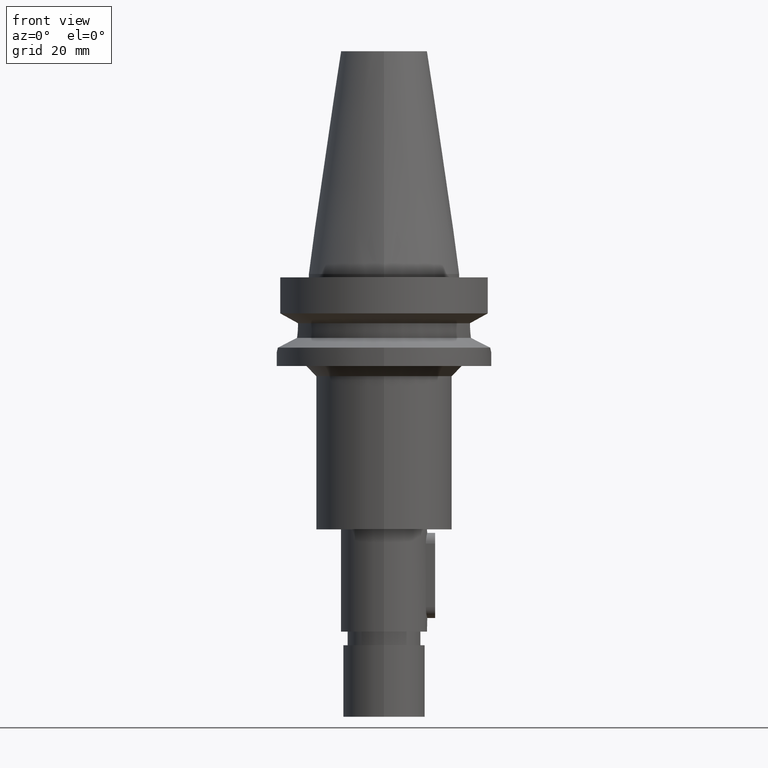
[diagram: clean part render]
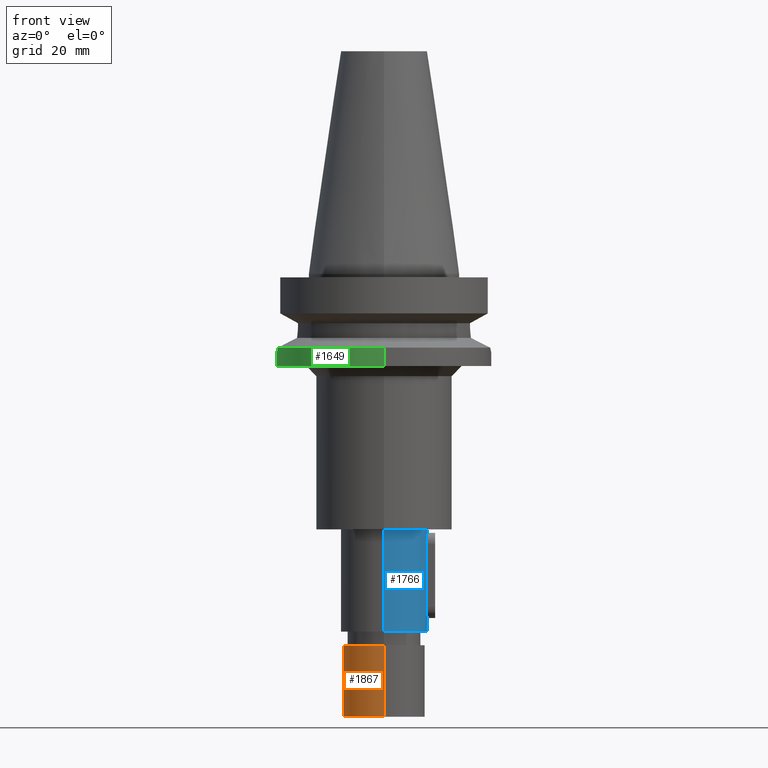
[diagram: same view with three faces highlighted in distinct colors, each labeled with its STEP entity id]
A machine part, front view with three faces highlighted in distinct colors.
Their STEP definitions:

[orange] entity #1867 — the highlighted cylindrical surface (partial cylindrical patch) has radius 12 mm, axis along (0, 0, -1).
#808=CARTESIAN_POINT('',(0.E0,2.145213798066E-14,-1.09E2));
#809=DIRECTION('',(0.E0,0.E0,-1.E0));
#810=DIRECTION('',(0.E0,-1.E0,0.E0));
#811=AXIS2_PLACEMENT_3D('',#808,#809,#810);
#832=DIRECTION('',(0.E0,0.E0,-1.E0));
#833=VECTOR('',#832,2.1E1);
#834=CARTESIAN_POINT('',(0.E0,1.2E1,-1.09E2));
#835=LINE('',#834,#833);
#839=DIRECTION('',(0.E0,0.E0,-1.E0));
#840=VECTOR('',#839,2.1E1);
#841=CARTESIAN_POINT('',(0.E0,-1.2E1,-1.09E2));
#842=LINE('',#841,#840);
#846=CARTESIAN_POINT('',(0.E0,2.145213798066E-14,-1.3E2));
#847=DIRECTION('',(0.E0,0.E0,1.E0));
#848=DIRECTION('',(0.E0,1.E0,0.E0));
#849=AXIS2_PLACEMENT_3D('',#846,#847,#848);
#1210=CARTESIAN_POINT('',(0.E0,1.2E1,-1.09E2));
#1211=CARTESIAN_POINT('',(0.E0,-1.2E1,-1.09E2));
#1212=VERTEX_POINT('',#1210);
#1213=VERTEX_POINT('',#1211);
#1214=CARTESIAN_POINT('',(0.E0,1.2E1,-1.3E2));
#1215=VERTEX_POINT('',#1214);
#1216=CARTESIAN_POINT('',(0.E0,-1.2E1,-1.3E2));
#1217=VERTEX_POINT('',#1216);
#1855=CARTESIAN_POINT('',(0.E0,2.145213798066E-14,7.517E1));
#1856=DIRECTION('',(0.E0,0.E0,-1.E0));
#1857=DIRECTION('',(0.E0,-1.E0,0.E0));
#1858=AXIS2_PLACEMENT_3D('',#1855,#1856,#1857);
#1859=CYLINDRICAL_SURFACE('',#1858,1.2E1);
#1860=ORIENTED_EDGE('',*,*,#1845,.F.);
#1861=ORIENTED_EDGE('',*,*,#1831,.F.);
#1862=ORIENTED_EDGE('',*,*,#1849,.T.);
#1864=ORIENTED_EDGE('',*,*,#1863,.F.);
#1865=EDGE_LOOP('',(#1860,#1861,#1862,#1864));
#1866=FACE_OUTER_BOUND('',#1865,.F.);
#812=CIRCLE('',#811,1.2E1);
#850=CIRCLE('',#849,1.2E1);
#1831=EDGE_CURVE('',#1213,#1212,#812,.T.);
#1845=EDGE_CURVE('',#1212,#1215,#835,.T.);
#1849=EDGE_CURVE('',#1213,#1217,#842,.T.);
#1863=EDGE_CURVE('',#1215,#1217,#850,.T.);
#1867=ADVANCED_FACE('',(#1866),#1859,.T.);

[blue] entity #1766 — the highlighted cylindrical surface (partial cylindrical patch) has radius 12.7 mm, axis along (0, 0, -1).
#710=CARTESIAN_POINT('',(0.E0,2.145213798066E-14,-7.5E1));
#711=DIRECTION('',(0.E0,0.E0,-1.E0));
#712=DIRECTION('',(0.E0,1.E0,0.E0));
#713=AXIS2_PLACEMENT_3D('',#710,#711,#712);
#726=DIRECTION('',(0.E0,0.E0,-1.E0));
#727=VECTOR('',#726,3.E1);
#728=CARTESIAN_POINT('',(0.E0,1.27E1,-7.5E1));
#729=LINE('',#728,#727);
#733=DIRECTION('',(0.E0,0.E0,-1.E0));
#734=VECTOR('',#733,1.865E1);
#735=CARTESIAN_POINT('',(1.229672212421E1,-3.175E0,-7.9175E1));
#736=LINE('',#735,#734);
#740=DIRECTION('',(0.E0,0.E0,1.E0));
#741=VECTOR('',#740,1.865E1);
#742=CARTESIAN_POINT('',(1.229672212421E1,3.175E0,-9.7825E1));
#743=LINE('',#742,#741);
#747=DIRECTION('',(0.E0,0.E0,-1.E0));
#748=VECTOR('',#747,3.E1);
#749=CARTESIAN_POINT('',(0.E0,-1.27E1,-7.5E1));
#750=LINE('',#749,#748);
#762=CARTESIAN_POINT('',(0.E0,2.145213798066E-14,-1.05E2));
#763=DIRECTION('',(0.E0,0.E0,1.E0));
#764=DIRECTION('',(0.E0,-1.E0,0.E0));
#765=AXIS2_PLACEMENT_3D('',#762,#763,#764);
#862=CARTESIAN_POINT('',(1.229672212421E1,-3.175E0,-7.9175E1));
#863=CARTESIAN_POINT('',(1.229672212421E1,-3.175E0,-7.890515124492E1));
#864=CARTESIAN_POINT('',(1.231473009773E1,-3.106632829053E0,-7.836100792455E1));
#865=CARTESIAN_POINT('',(1.239308024707E1,-2.785955131542E0,-7.757647034402E1));
#866=CARTESIAN_POINT('',(1.249852605400E1,-2.279093671454E0,-7.691333904992E1));
#867=CARTESIAN_POINT('',(1.260379102906E1,-1.617772602321E0,-7.639969170035E1));
#868=CARTESIAN_POINT('',(1.268185016032E1,-8.286768963870E-1,
-7.607132430609E1));
#869=CARTESIAN_POINT('',(1.270000027312E1,-2.754343927966E-1,
-7.599999871655E1));
#870=CARTESIAN_POINT('',(1.270000027312E1,-6.828208700673E-14,
-7.599999871655E1));
#875=CARTESIAN_POINT('',(1.270000027312E1,-6.828208700673E-14,
-7.599999871655E1));
#876=CARTESIAN_POINT('',(1.270000027312E1,2.703804618501E-1,-7.599999871655E1));
#877=CARTESIAN_POINT('',(1.268253072474E1,8.152836430110E-1,-7.606867194339E1));
#878=CARTESIAN_POINT('',(1.260609088645E1,1.599517927276E0,-7.638964233108E1));
#879=CARTESIAN_POINT('',(1.250163095211E1,2.262432360134E0,-7.689665976028E1));
#880=CARTESIAN_POINT('',(1.239540153042E1,2.776021585071E0,-7.755836981460E1));
#881=CARTESIAN_POINT('',(1.231541671831E1,3.104050914061E0,-7.834787912935E1));
#882=CARTESIAN_POINT('',(1.229672212421E1,3.175E0,-7.890021389503E1));
#883=CARTESIAN_POINT('',(1.229672212421E1,3.175E0,-7.9175E1));
#902=CARTESIAN_POINT('',(1.229672212421E1,3.175E0,-9.7825E1));
#903=CARTESIAN_POINT('',(1.229672212421E1,3.175E0,-9.809484872895E1));
#904=CARTESIAN_POINT('',(1.231473009754E1,3.106632828510E0,-9.863899208359E1));
#905=CARTESIAN_POINT('',(1.239308025576E1,2.785955101206E0,-9.942352978910E1));
#906=CARTESIAN_POINT('',(1.249852617954E1,2.279093074225E0,-1.000866616647E2));
#907=CARTESIAN_POINT('',(1.260379112852E1,1.617771636687E0,-1.006003087180E2));
#908=CARTESIAN_POINT('',(1.268185007234E1,8.286778734280E-1,-1.009286753317E2));
#909=CARTESIAN_POINT('',(1.270000027312E1,2.754348693555E-1,-1.010000012835E2));
#910=CARTESIAN_POINT('',(1.270000027312E1,3.445227692690E-14,
-1.010000012835E2));
#915=CARTESIAN_POINT('',(1.270000027312E1,3.445227692690E-14,
-1.010000012835E2));
#916=CARTESIAN_POINT('',(1.270000027312E1,-2.703799286932E-1,
-1.010000012835E2));
#917=CARTESIAN_POINT('',(1.268253081867E1,-8.152825347796E-1,
-1.009313284416E2));
#918=CARTESIAN_POINT('',(1.260609080512E1,-1.599518774472E0,-1.006103573322E2));
#919=CARTESIAN_POINT('',(1.250163082601E1,-2.262432977249E0,-1.001033395403E2));
#920=CARTESIAN_POINT('',(1.239540149814E1,-2.776021720748E0,-9.944162989167E1));
#921=CARTESIAN_POINT('',(1.231541670758E1,-3.104050955518E0,-9.865212067801E1));
#922=CARTESIAN_POINT('',(1.229672212421E1,-3.175E0,-9.809978605067E1));
#923=CARTESIAN_POINT('',(1.229672212421E1,-3.175E0,-9.7825E1));
#1187=CARTESIAN_POINT('',(0.E0,1.27E1,-7.5E1));
#1188=CARTESIAN_POINT('',(0.E0,-1.27E1,-7.5E1));
#1189=VERTEX_POINT('',#1187);
#1190=VERTEX_POINT('',#1188);
#1191=CARTESIAN_POINT('',(0.E0,1.27E1,-1.05E2));
#1192=VERTEX_POINT('',#1191);
#1193=CARTESIAN_POINT('',(0.E0,-1.27E1,-1.05E2));
#1194=VERTEX_POINT('',#1193);
#1195=VERTEX_POINT('',#875);
#1196=VERTEX_POINT('',#883);
#1197=VERTEX_POINT('',#862);
#1198=CARTESIAN_POINT('',(1.229672212421E1,-3.175E0,-9.7825E1));
#1199=VERTEX_POINT('',#1198);
#1200=VERTEX_POINT('',#915);
#1201=VERTEX_POINT('',#902);
#1738=CARTESIAN_POINT('',(0.E0,2.145213798066E-14,7.517E1));
#1739=DIRECTION('',(0.E0,0.E0,-1.E0));
#1740=DIRECTION('',(0.E0,-1.E0,0.E0));
#1741=AXIS2_PLACEMENT_3D('',#1738,#1739,#1740);
#1742=CYLINDRICAL_SURFACE('',#1741,1.27E1);
#1744=ORIENTED_EDGE('',*,*,#1743,.T.);
#1746=ORIENTED_EDGE('',*,*,#1745,.F.);
#1748=ORIENTED_EDGE('',*,*,#1747,.F.);
#1749=ORIENTED_EDGE('',*,*,#1731,.F.);
#1750=EDGE_LOOP('',(#1744,#1746,#1748,#1749));
#1751=FACE_OUTER_BOUND('',#1750,.F.);
#1753=ORIENTED_EDGE('',*,*,#1752,.F.);
#1755=ORIENTED_EDGE('',*,*,#1754,.F.);
#1757=ORIENTED_EDGE('',*,*,#1756,.T.);
#1759=ORIENTED_EDGE('',*,*,#1758,.F.);
#1761=ORIENTED_EDGE('',*,*,#1760,.F.);
#1763=ORIENTED_EDGE('',*,*,#1762,.T.);
#1764=EDGE_LOOP('',(#1753,#1755,#1757,#1759,#1761,#1763));
#1765=FACE_BOUND('',#1764,.F.);
#714=CIRCLE('',#713,1.27E1);
#766=CIRCLE('',#765,1.27E1);
#871=B_SPLINE_CURVE_WITH_KNOTS('',3,(#862,#863,#864,#865,#866,#867,#868,#869,
#870),.UNSPECIFIED.,.F.,.F.,(4,1,1,1,1,1,4),(0.E0,1.666666666667E-1,
3.333333333333E-1,5.E-1,6.666666666667E-1,8.333333333333E-1,1.E0),
.UNSPECIFIED.);
#884=B_SPLINE_CURVE_WITH_KNOTS('',3,(#875,#876,#877,#878,#879,#880,#881,#882,
#883),.UNSPECIFIED.,.F.,.F.,(4,1,1,1,1,1,4),(0.E0,1.666666666667E-1,
3.333333333333E-1,5.E-1,6.666666666667E-1,8.333333333333E-1,1.E0),
.UNSPECIFIED.);
#911=B_SPLINE_CURVE_WITH_KNOTS('',3,(#902,#903,#904,#905,#906,#907,#908,#909,
#910),.UNSPECIFIED.,.F.,.F.,(4,1,1,1,1,1,4),(0.E0,1.666666666667E-1,
3.333333333333E-1,5.E-1,6.666666666667E-1,8.333333333333E-1,1.E0),
.UNSPECIFIED.);
#924=B_SPLINE_CURVE_WITH_KNOTS('',3,(#915,#916,#917,#918,#919,#920,#921,#922,
#923),.UNSPECIFIED.,.F.,.F.,(4,1,1,1,1,1,4),(0.E0,1.666666666667E-1,
3.333333333333E-1,5.E-1,6.666666666667E-1,8.333333333333E-1,1.E0),
.UNSPECIFIED.);
#1731=EDGE_CURVE('',#1189,#1190,#714,.T.);
#1743=EDGE_CURVE('',#1189,#1192,#729,.T.);
#1745=EDGE_CURVE('',#1194,#1192,#766,.T.);
#1747=EDGE_CURVE('',#1190,#1194,#750,.T.);
#1752=EDGE_CURVE('',#1195,#1196,#884,.T.);
#1754=EDGE_CURVE('',#1197,#1195,#871,.T.);
#1756=EDGE_CURVE('',#1197,#1199,#736,.T.);
#1758=EDGE_CURVE('',#1200,#1199,#924,.T.);
#1760=EDGE_CURVE('',#1201,#1200,#911,.T.);
#1762=EDGE_CURVE('',#1201,#1196,#743,.T.);
#1766=ADVANCED_FACE('',(#1751,#1765),#1742,.T.);

[green] entity #1649 — the highlighted cylindrical surface (partial cylindrical patch) has radius 31.5 mm, axis along (0, 0, -1).
#458=CARTESIAN_POINT('',(-3.117899877609E1,-4.485536235554E0,
-2.163449434733E1));
#504=CARTESIAN_POINT('',(0.E0,0.E0,-2.163449434733E1));
#505=DIRECTION('',(0.E0,0.E0,-1.E0));
#506=DIRECTION('',(0.E0,-1.E0,0.E0));
#507=AXIS2_PLACEMENT_3D('',#504,#505,#506);
#538=DIRECTION('',(0.E0,1.099151708819E-13,-1.E0));
#539=VECTOR('',#538,5.365505652669E0);
#540=CARTESIAN_POINT('',(0.E0,3.15E1,-2.163449434733E1));
#541=LINE('',#540,#539);
#552=CARTESIAN_POINT('',(-3.117899877609E1,4.485536235554E0,-2.163449434733E1));
#557=CARTESIAN_POINT('',(0.E0,0.E0,-2.163449434733E1));
#558=DIRECTION('',(0.E0,0.E0,-1.E0));
#559=DIRECTION('',(-9.898094849553E-1,1.423979757319E-1,0.E0));
#560=AXIS2_PLACEMENT_3D('',#557,#558,#559);
#599=CARTESIAN_POINT('',(-3.117899877609E1,4.485536235554E0,-2.163449434733E1));
#600=CARTESIAN_POINT('',(-3.125758072304E1,3.939312484576E0,-2.200103013903E1));
#601=CARTESIAN_POINT('',(-3.139261492804E1,2.797834037505E0,-2.257699109906E1));
#602=CARTESIAN_POINT('',(-3.150507135618E1,9.439074662085E-1,
-2.302018781410E1));
#603=CARTESIAN_POINT('',(-3.150408832850E1,-9.724472448951E-1,
-2.301641485238E1));
#604=CARTESIAN_POINT('',(-3.139073449818E1,-2.815725758123E0,
-2.256928971780E1));
#605=CARTESIAN_POINT('',(-3.125667710255E1,-3.945593557940E0,
-2.199681531280E1));
#606=CARTESIAN_POINT('',(-3.117899877609E1,-4.485536235554E0,
-2.163449434733E1));
#611=DIRECTION('',(0.E0,-1.105773104655E-13,-1.E0));
#612=VECTOR('',#611,5.365505652669E0);
#613=CARTESIAN_POINT('',(0.E0,-3.15E1,-2.163449434733E1));
#614=LINE('',#613,#612);
#618=CARTESIAN_POINT('',(0.E0,2.145213798066E-14,-2.7E1));
#619=DIRECTION('',(0.E0,0.E0,1.E0));
#620=DIRECTION('',(0.E0,1.E0,0.E0));
#621=AXIS2_PLACEMENT_3D('',#618,#619,#620);
#1165=CARTESIAN_POINT('',(0.E0,3.15E1,-2.163449434733E1));
#1166=VERTEX_POINT('',#1165);
#1167=CARTESIAN_POINT('',(0.E0,3.15E1,-2.7E1));
#1168=VERTEX_POINT('',#1167);
#1169=CARTESIAN_POINT('',(0.E0,-3.15E1,-2.7E1));
#1170=VERTEX_POINT('',#1169);
#1171=CARTESIAN_POINT('',(0.E0,-3.15E1,-2.163449434733E1));
#1172=VERTEX_POINT('',#1171);
#1173=VERTEX_POINT('',#458);
#1174=VERTEX_POINT('',#552);
#1635=CARTESIAN_POINT('',(0.E0,2.145213798066E-14,7.517E1));
#1636=DIRECTION('',(0.E0,0.E0,-1.E0));
#1637=DIRECTION('',(0.E0,-1.E0,0.E0));
#1638=AXIS2_PLACEMENT_3D('',#1635,#1636,#1637);
#1639=CYLINDRICAL_SURFACE('',#1638,3.15E1);
#1640=ORIENTED_EDGE('',*,*,#1553,.T.);
#1641=ORIENTED_EDGE('',*,*,#1578,.F.);
#1642=ORIENTED_EDGE('',*,*,#1614,.T.);
#1644=ORIENTED_EDGE('',*,*,#1643,.F.);
#1645=ORIENTED_EDGE('',*,*,#1610,.F.);
#1646=ORIENTED_EDGE('',*,*,#1626,.F.);
#1647=EDGE_LOOP('',(#1640,#1641,#1642,#1644,#1645,#1646));
#1648=FACE_OUTER_BOUND('',#1647,.F.);
#508=CIRCLE('',#507,3.15E1);
#561=CIRCLE('',#560,3.15E1);
#607=B_SPLINE_CURVE_WITH_KNOTS('',3,(#599,#600,#601,#602,#603,#604,#605,#606),
.UNSPECIFIED.,.F.,.F.,(4,1,1,1,1,4),(0.E0,2.E-1,4.E-1,6.E-1,8.E-1,1.E0),
.UNSPECIFIED.);
#622=CIRCLE('',#621,3.15E1);
#1553=EDGE_CURVE('',#1174,#1173,#607,.T.);
#1578=EDGE_CURVE('',#1172,#1173,#508,.T.);
#1610=EDGE_CURVE('',#1166,#1168,#541,.T.);
#1614=EDGE_CURVE('',#1172,#1170,#614,.T.);
#1626=EDGE_CURVE('',#1174,#1166,#561,.T.);
#1643=EDGE_CURVE('',#1168,#1170,#622,.T.);
#1649=ADVANCED_FACE('',(#1648),#1639,.T.);